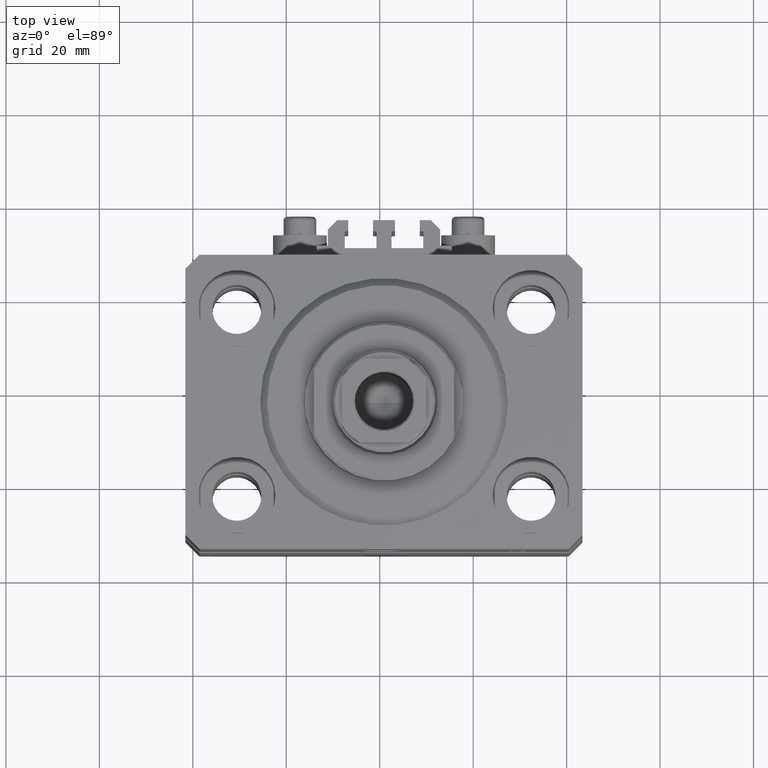
[diagram: clean part render]
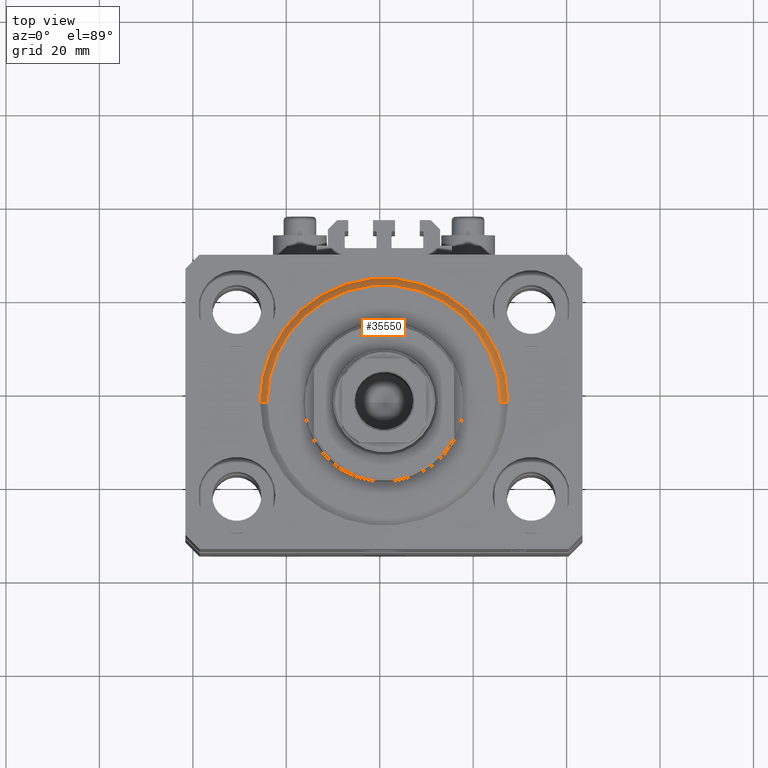
[diagram: same view with one face highlighted and labeled with its STEP entity id]
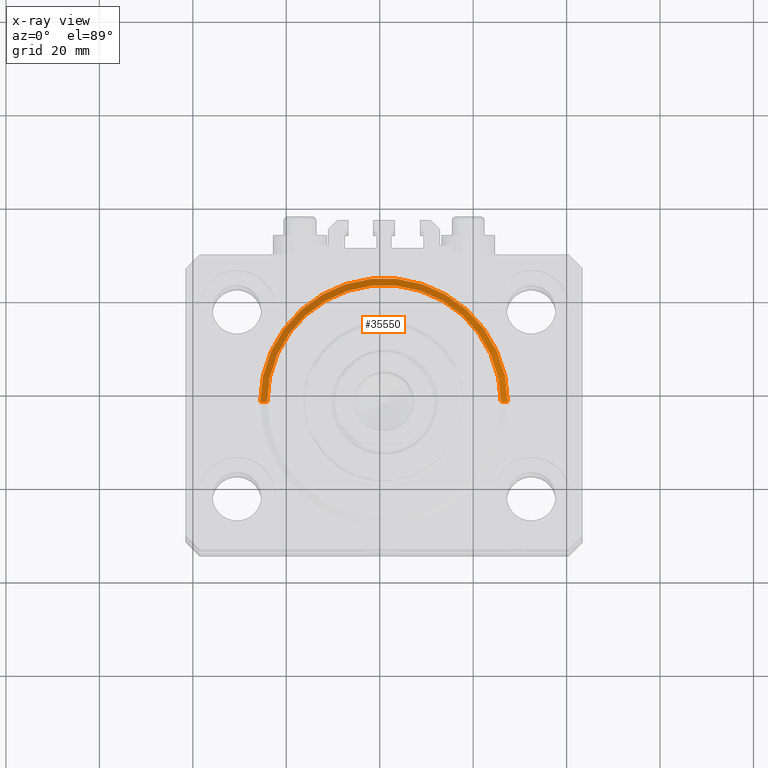
[diagram: x-ray of the same camera — body ghosted, the highlighted face saturated]
A machine part, top view. The second image highlights one B-rep face of the part: STEP entity #35550.
The next image is the same camera in x-ray: the body ghosted, the highlighted face saturated — about 0% of this face is hidden behind the body in this view.
In plain terms, the highlighted conical surface has half-angle 45 deg.
Its self-contained STEP definition (entity closure, byte-faithful):
#524 = DIRECTION ( 'NONE',  ( 1.000000000000000000, 0.000000000000000000, 0.000000000000000000 ) ) ;
#750 = DIRECTION ( 'NONE',  ( 0.7071067811865483499, 0.000000000000000000, 0.7071067811865466846 ) ) ;
#2224 = DIRECTION ( 'NONE',  ( -0.000000000000000000, -0.000000000000000000, 1.000000000000000000 ) ) ;
#3767 = AXIS2_PLACEMENT_3D ( 'NONE', #43008, #6425, #38931 ) ;
#5217 = CIRCLE ( 'NONE', #11368, 26.50000000000000355 ) ;
#5251 = VECTOR ( 'NONE', #27417, 1000.000000000000000 ) ;
#5604 = CARTESIAN_POINT ( 'NONE',  ( -26.50000000000000355, 0.000000000000000000, 1.500000000000018652 ) ) ;
#5818 = CARTESIAN_POINT ( 'NONE',  ( 0.000000000000000000, 0.000000000000000000, 1.500000000000018652 ) ) ;
#6005 = VECTOR ( 'NONE', #750, 1000.000000000000000 ) ;
#6063 = VERTEX_POINT ( 'NONE', #34978 ) ;
#6425 = DIRECTION ( 'NONE',  ( -0.000000000000000000, -0.000000000000000000, -1.000000000000000000 ) ) ;
#7739 = VERTEX_POINT ( 'NONE', #16276 ) ;
#9372 = LINE ( 'NONE', #31030, #5251 ) ;
#11368 = AXIS2_PLACEMENT_3D ( 'NONE', #5818, #2224, #26765 ) ;
#12041 = FACE_OUTER_BOUND ( 'NONE', #15161, .T. ) ;
#12282 = CARTESIAN_POINT ( 'NONE',  ( 0.000000000000000000, 0.000000000000000000, 1.500000000000018652 ) ) ;
#12859 = CIRCLE ( 'NONE', #3767, 24.99999999999998224 ) ;
#14452 = VERTEX_POINT ( 'NONE', #5604 ) ;
#15161 = EDGE_LOOP ( 'NONE', ( #28091, #44292, #17700, #29207 ) ) ;
#16276 = CARTESIAN_POINT ( 'NONE',  ( 26.50000000000000355, 3.245314017740486554E-15, 1.500000000000018652 ) ) ;
#17700 = ORIENTED_EDGE ( 'NONE', *, *, #26610, .F. ) ;
#19262 = DIRECTION ( 'NONE',  ( -0.000000000000000000, -0.000000000000000000, 1.000000000000000000 ) ) ;
#19332 = CONICAL_SURFACE ( 'NONE', #37033, 26.50000000000000355, 0.7853981633974495002 ) ;
#26610 = EDGE_CURVE ( 'NONE', #7739, #14452, #5217, .T. ) ;
#26765 = DIRECTION ( 'NONE',  ( 1.000000000000000000, 0.000000000000000000, 0.000000000000000000 ) ) ;
#26870 = EDGE_CURVE ( 'NONE', #6063, #7739, #33011, .T. ) ;
#26919 = EDGE_CURVE ( 'NONE', #32630, #14452, #9372, .T. ) ;
#27417 = DIRECTION ( 'NONE',  ( -0.7071067811865483499, 8.659560562354942719E-17, 0.7071067811865466846 ) ) ;
#27871 = EDGE_CURVE ( 'NONE', #32630, #6063, #12859, .T. ) ;
#28091 = ORIENTED_EDGE ( 'NONE', *, *, #27871, .F. ) ;
#29207 = ORIENTED_EDGE ( 'NONE', *, *, #26870, .F. ) ;
#29395 = CARTESIAN_POINT ( 'NONE',  ( 26.50000000000000355, 0.000000000000000000, 1.500000000000018652 ) ) ;
#31030 = CARTESIAN_POINT ( 'NONE',  ( -26.50000000000000355, 3.245314017740486554E-15, 1.500000000000018652 ) ) ;
#32630 = VERTEX_POINT ( 'NONE', #38815 ) ;
#33011 = LINE ( 'NONE', #29395, #6005 ) ;
#34978 = CARTESIAN_POINT ( 'NONE',  ( 24.99999999999998224, 0.000000000000000000, 0.000000000000000000 ) ) ;
#35550 = ADVANCED_FACE ( 'NONE', ( #12041 ), #19332, .T. ) ;
#37033 = AXIS2_PLACEMENT_3D ( 'NONE', #12282, #19262, #524 ) ;
#38815 = CARTESIAN_POINT ( 'NONE',  ( -24.99999999999998224, 3.153465507804433615E-15, 0.000000000000000000 ) ) ;
#38931 = DIRECTION ( 'NONE',  ( 1.000000000000000000, 0.000000000000000000, 0.000000000000000000 ) ) ;
#43008 = CARTESIAN_POINT ( 'NONE',  ( 0.000000000000000000, 0.000000000000000000, 0.000000000000000000 ) ) ;
#44292 = ORIENTED_EDGE ( 'NONE', *, *, #26919, .T. ) ;